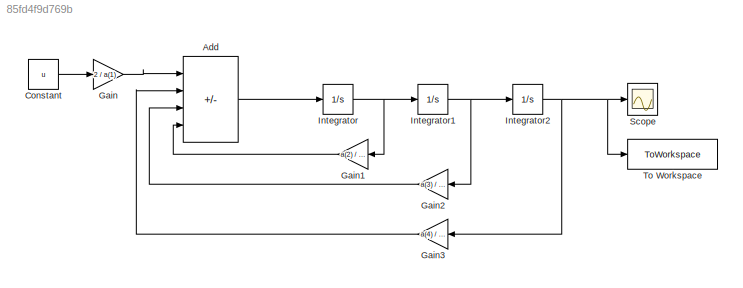
MODEL slx_85fd4f9d769b
KIND model
CONFIG AbsTol = auto
CONFIG EnableMultiTasking = off
CONFIG FixedStep = auto
CONFIG MaxStep = auto
CONFIG MinStep = auto
CONFIG RelTol = 1e-3
CONFIG SampleTimeConstraint = Unconstrained
CONFIG SolverName = VariableStepAuto
CONFIG StartTime = 0.0
CONFIG StopTime = 10.0
BLOCK [Sum] Add
  IconShape = rectangular
  Inputs = +---
BLOCK [Constant] Constant
  Value = u
BLOCK [Gain] Gain
  Gain = 2 / a(1)
BLOCK [Gain] Gain1
  Gain = a(2) / a(1)
  NameLocation = top
BLOCK [Gain] Gain2
  Gain = a(3) / a(1)
  NameLocation = top
BLOCK [Gain] Gain3
  Gain = a(4) / a(1)
  NameLocation = top
BLOCK [Integrator] Integrator
  InitialCondition = p(3)
BLOCK [Integrator] Integrator1
  InitialCondition = p(2)
BLOCK [Integrator] Integrator2
  InitialCondition = p(1)
BLOCK [Scope] Scope
  Floating = off
  NumInputPorts = 1
  ScopeSpecificationString = Simulink.scopes.TimeScopeBlockCfg('CurrentConfiguration', extmgr.ConfigurationSet(extmgr.Configuration('Core','General UI',true),extmgr.Configuration('Core','Source UI',true),extmgr.Configuration('Sources','WiredSimulink',true),extmgr.Configuration('Visuals','Time Domain',true),extmgr.Configuration('Tools','Plot Navigation',true),extmgr.Configuration('Tools','Measurements',true)),'Version','2024b'...<+1ch>
BLOCK [ToWorkspace] To Workspace
  FixptAsFi = on
  MaxDataPoints = inf
  SampleTime = -1
  SaveFormat = Timeseries
  VariableName = simout
LINE Add:1 -> Integrator:1
LINE Constant:1 -> Gain:1
LINE Gain1:1 -> Add:4
LINE Gain2:1 -> Add:3
LINE Gain3:1 -> Add:2
LINE Gain:1 -> Add:1
NET Integrator1:1 -> Gain2:1, Integrator2:1
NET Integrator2:1 -> Gain3:1, Scope:1, To Workspace:1
NET Integrator:1 -> Gain1:1, Integrator1:1
note: NET lines group one-source signal fan-out (src -> all destinations, sorted); 1:1 wires keep LINE
